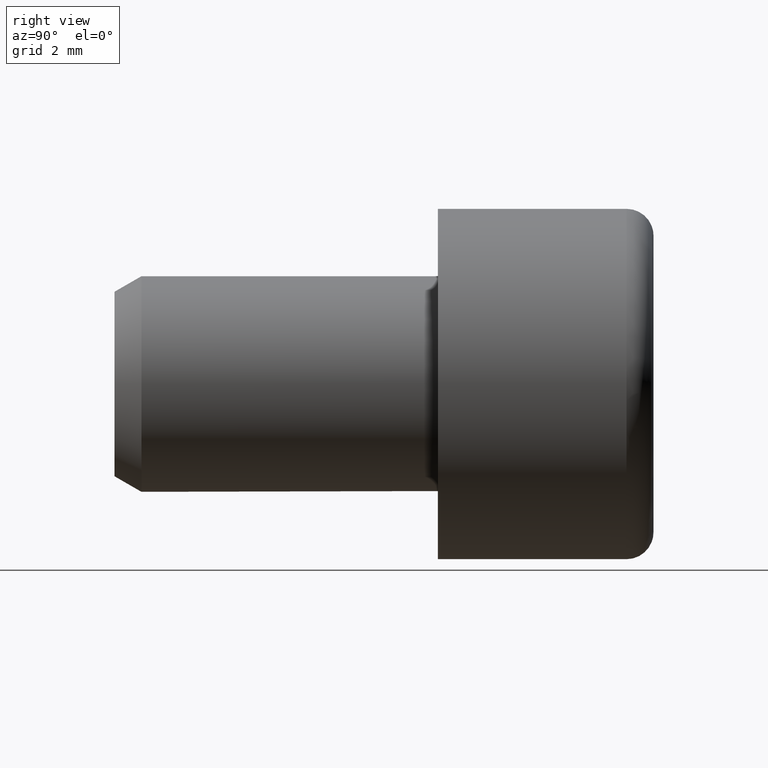
[diagram: clean part render]
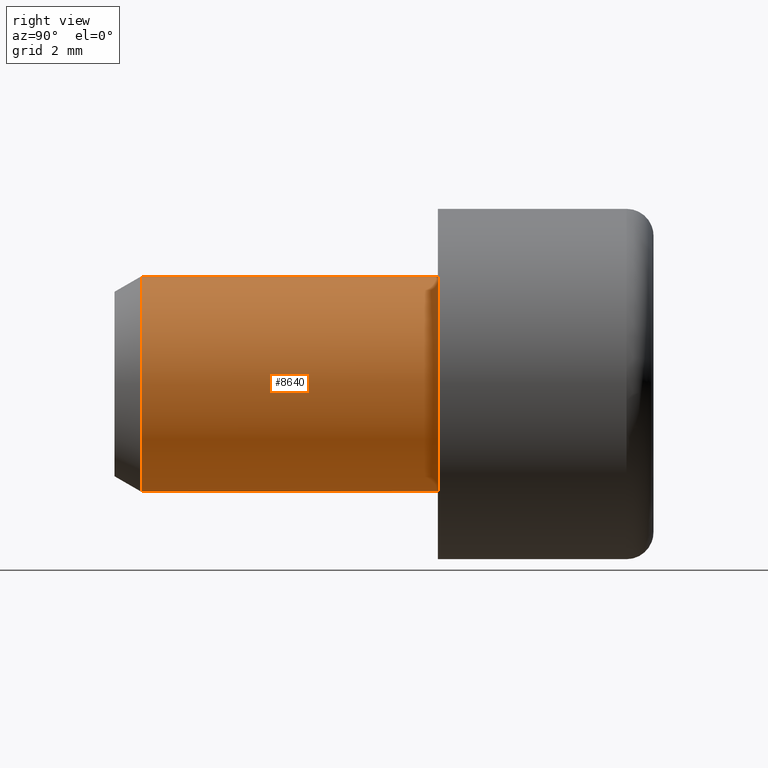
[diagram: same view with one face highlighted and labeled with its STEP entity id]
A machine part, right view. The second image highlights one B-rep face of the part: STEP entity #8640.
In plain terms, the highlighted cylindrical surface (bore or boss wall) has radius 4 mm, axis along (-0, 1, -0).
Its self-contained STEP definition (entity closure, byte-faithful):
#1986 = CARTESIAN_POINT ( 'NONE',  ( 0.0000000000000000000, 0.0000000000000000000, 0.0000000000000000000 ) ) ;
#2051 = FACE_OUTER_BOUND ( 'NONE', #11513, .T. ) ;
#2438 = CARTESIAN_POINT ( 'NONE',  ( 0.0000000000000000000, 0.0000000000000000000, 4.000000000000000000 ) ) ;
#2877 = AXIS2_PLACEMENT_3D ( 'NONE', #1986, #13154, #7077 ) ;
#3027 = DIRECTION ( 'NONE',  ( 0.0000000000000000000, 1.000000000000000000, 0.0000000000000000000 ) ) ;
#3128 = DIRECTION ( 'NONE',  ( 0.0000000000000000000, 0.0000000000000000000, -1.000000000000000000 ) ) ;
#3590 = CIRCLE ( 'NONE', #2877, 4.000000000000000000 ) ;
#3623 = CYLINDRICAL_SURFACE ( 'NONE', #8067, 4.000000000000000000 ) ;
#4097 = CARTESIAN_POINT ( 'NONE',  ( 0.0000000000000000000, -12.00000000000000000, 0.0000000000000000000 ) ) ;
#4672 = ORIENTED_EDGE ( 'NONE', *, *, #10126, .T. ) ;
#4904 = CARTESIAN_POINT ( 'NONE',  ( 0.0000000000000000000, -10.99999999999999600, -4.000000000000000000 ) ) ;
#5390 = DIRECTION ( 'NONE',  ( 0.0000000000000000000, 0.0000000000000000000, 1.000000000000000000 ) ) ;
#5836 = EDGE_LOOP ( 'NONE', ( #11899 ) ) ;
#7077 = DIRECTION ( 'NONE',  ( 0.0000000000000000000, 0.0000000000000000000, 1.000000000000000000 ) ) ;
#7535 = VERTEX_POINT ( 'NONE', #4904 ) ;
#7577 = CIRCLE ( 'NONE', #15484, 4.000000000000000000 ) ;
#8067 = AXIS2_PLACEMENT_3D ( 'NONE', #4097, #10476, #5390 ) ;
#8640 = ADVANCED_FACE ( 'NONE', ( #14117, #2051 ), #3623, .T. ) ;
#8890 = VERTEX_POINT ( 'NONE', #2438 ) ;
#10126 = EDGE_CURVE ( 'NONE', #8890, #8890, #3590, .T. ) ;
#10476 = DIRECTION ( 'NONE',  ( -0.0000000000000000000, 1.000000000000000000, -0.0000000000000000000 ) ) ;
#10705 = CARTESIAN_POINT ( 'NONE',  ( 0.0000000000000000000, -10.99999999999999600, 0.0000000000000000000 ) ) ;
#11118 = EDGE_CURVE ( 'NONE', #7535, #7535, #7577, .T. ) ;
#11513 = EDGE_LOOP ( 'NONE', ( #4672 ) ) ;
#11899 = ORIENTED_EDGE ( 'NONE', *, *, #11118, .T. ) ;
#13154 = DIRECTION ( 'NONE',  ( -0.0000000000000000000, -1.000000000000000000, -0.0000000000000000000 ) ) ;
#14117 = FACE_OUTER_BOUND ( 'NONE', #5836, .T. ) ;
#15484 = AXIS2_PLACEMENT_3D ( 'NONE', #10705, #3027, #3128 ) ;